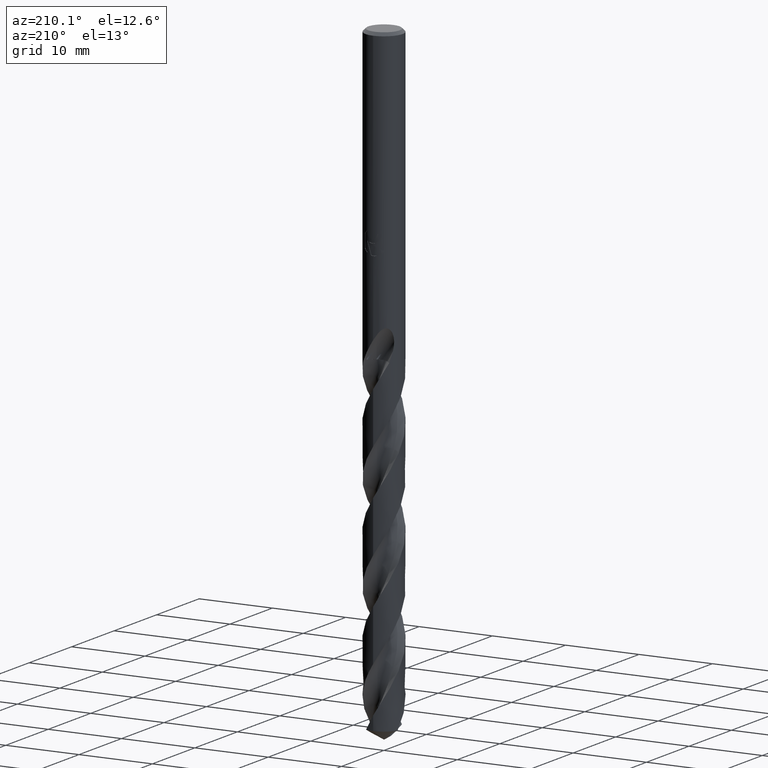
[diagram: clean part render]
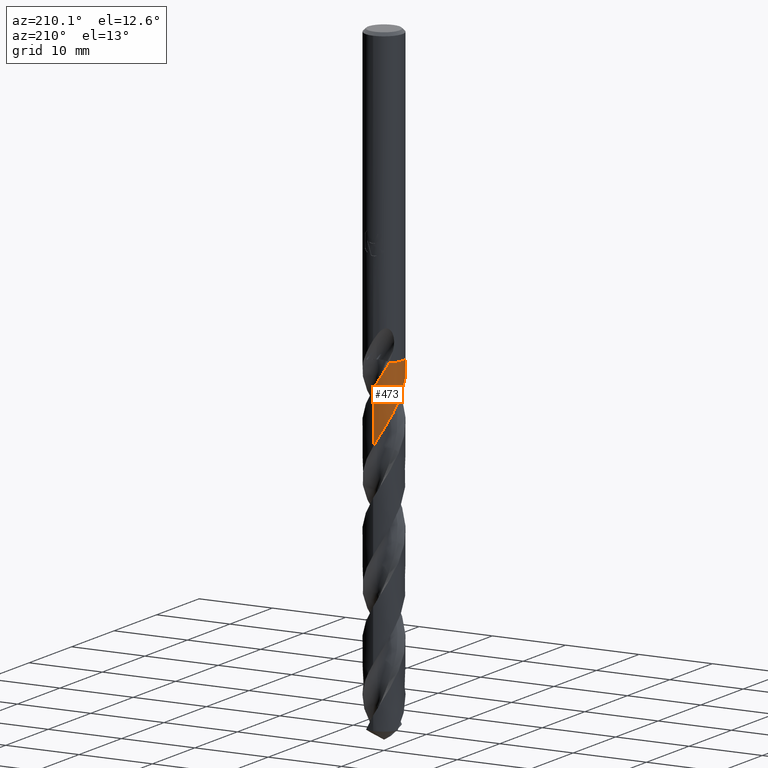
[diagram: same view with one face highlighted and labeled with its STEP entity id]
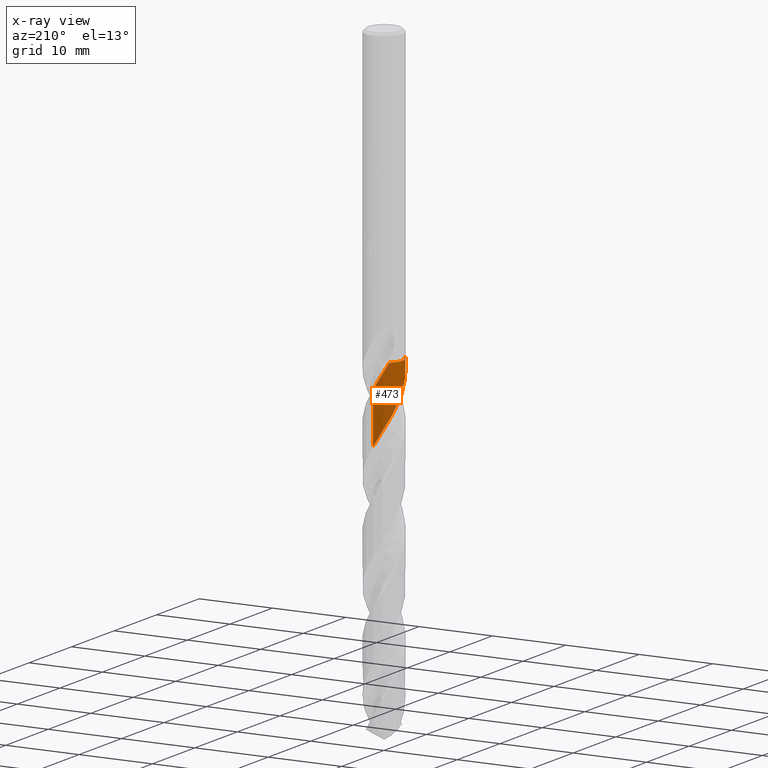
[diagram: x-ray of the same camera — body ghosted, the highlighted face saturated]
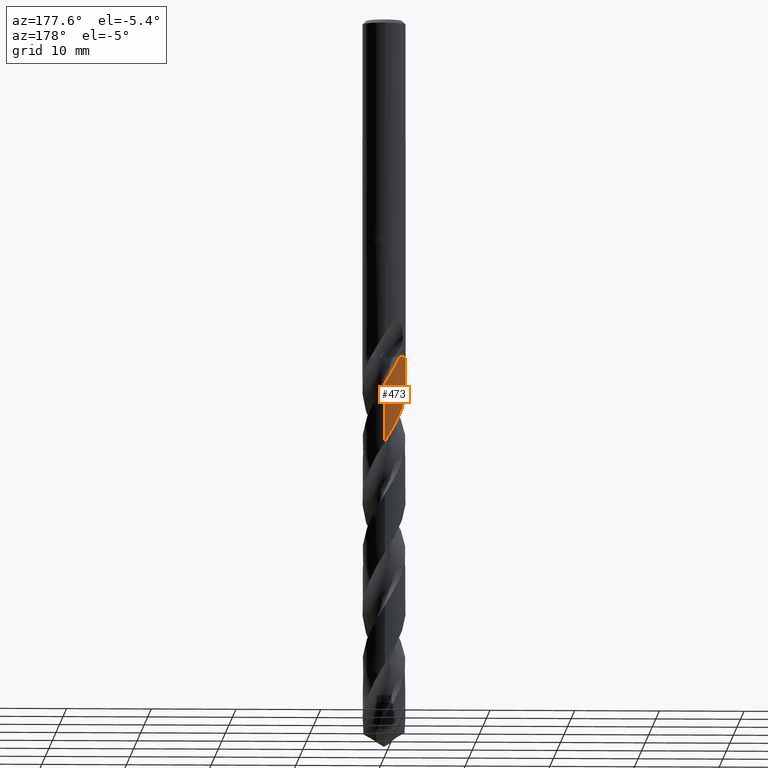
[diagram: same view with one face highlighted and labeled with its STEP entity id]
A machine part, auxiliary view. The second image highlights one B-rep face of the part: STEP entity #473.
The next image is the same camera in x-ray: the body ghosted, the highlighted face saturated — about 0% of this face is hidden behind the body in this view.
A second angle (auxiliary view) of the same face is appended — the face is thin or edge-on in the first view.
In plain terms, the highlighted conical surface has half-angle 0 deg.
Its self-contained STEP definition (entity closure, byte-faithful):
#273=VERTEX_POINT('',#772);
#289=EDGE_CURVE('',#597,#521,#789,.T.);
#291=EDGE_CURVE('',#571,#449,#791,.T.);
#417=EDGE_CURVE('',#439,#571,#932,.T.);
#439=VERTEX_POINT('',#955);
#449=VERTEX_POINT('',#965);
#473=ADVANCED_FACE('',(#990),#991,.T.);
#521=VERTEX_POINT('',#1043);
#571=VERTEX_POINT('',#1095);
#597=VERTEX_POINT('',#1123);
#641=EDGE_CURVE('',#521,#273,#1172,.T.);
#673=EDGE_CURVE('',#449,#597,#1207,.T.);
#691=EDGE_CURVE('',#273,#439,#1226,.T.);
#772=CARTESIAN_POINT('',(8.440574947388E-013,2.54992279290284,-50.058296588993));
#789=B_SPLINE_CURVE_WITH_KNOTS('',3,(#1484,#1485,#1486,#1487,#1488,#1489,#1490,#1491,#1492,#1493,#1494,#1495,#1496,#1497,#1498,#1499,#1500,#1501,#1502,#1503,#1504,#1505,#1506,#1507,#1508,#1509,#1510,#1511,#1512,#1513,#1514,#1515,#1516,#1517,#1518,#1519,#1520,#1521,#1522,#1523,#1524,#1525,#1526,#1527,#1528,#1529,#1530,#1531,#1532,#1533,#1534,#1535,#1536,#1537,#1538,#1539,#1540,#1541,#1542,#1543,#1544,#1545,#1546,#1547,#1548,#1549,#1550,#1551,#1552,#1553,#1554,#1555,#1556,#1557,#1558,#1559,#1560,#1561,#1562,#1563,#1564,#1565,#1566,#1567,#1568,#1569,#1570,#1571,#1572,#1573,#1574,#1575,#1576,#1577,#1578,#1579,#1580,#1581,#1582,#1583,#1584,#1585,#1586,#1587,#1588,#1589,#1590,#1591,#1592,#1593,#1594,#1595,#1596,#1597,#1598,#1599,#1600,#1601,#1602,#1603,#1604,#1605,#1606,#1607,#1608,#1609,#1610,#1611,#1612,#1613,#1614,#1615,#1616,#1617,#1618,#1619,#1620,#1621,#1622,#1623,#1624,#1625,#1626,#1627,#1628,#1629,#1630,#1631,#1632,#1633,#1634,#1635,#1636,#1637,#1638,#1639,#1640,#1641,#1642,#1643,#1644,#1645,#1646,#1647,#1648,#1649,#1650,#1651,#1652,#1653),.UNSPECIFIED.,.F.,.F.,(4,2,2,2,2,2,2,2,2,2,2,2,2,2,2,2,2,2,2,2,2,2,2,2,2,2,2,2,2,2,2,2,2,2,2,2,2,2,2,2,2,2,2,2,2,2,2,2,2,2,2,2,2,2,2,2,2,2,2,2,2,2,2,2,2,2,2,2,2,2,2,2,2,2,2,2,2,2,2,2,2,2,2,2,4),(0.0,0.1289003867779,0.20967630502013,0.219927323090969,0.225768006477936,0.229305344294958,0.232364383055172,0.235037511193027,0.237393931175857,0.239486668046633,0.241357145269324,0.243038265261639,0.24455655098041,0.245933651104251,0.553742122734929,0.62620119059038,0.665839472495525,0.699098372249616,0.738495942715459,0.809883850500402,0.907787905792497,1.3025659709241,1.55537703078222,2.05097821827631,3.17018514934176,3.59520130477232,4.31916235546973,4.72959242782101,5.21941359158196,6.24876845473718,6.78867340482069,7.60494178970837,8.05060921443211,8.47452030020541,9.28223600969028,10.1687804271957,11.1496106452739,11.7241998773506,12.5660980655195,13.4523766035624,14.4277279662493,15.01130220461,15.8555301253719,16.7412279944075,17.7289046034798,18.2918258940535,19.1334201912062,20.0193564674023,20.9940905262768,21.5778628174823,22.4217270833739,23.3070814515528,24.2943119899361,24.857131033221,25.6985240480323,26.5840982412755,27.5589001514242,28.1416367680582,28.9847623658284,29.8698379283179,30.8555792243082,31.4200109149371,32.2613408721694,33.1465291053263,34.1218386842541,34.7027664713882,35.5450043512273,36.4298268261532,37.4136445093189,37.9804260079949,38.821792358744,39.706577274446,40.6826250197941,41.2613410300859,42.1028665177999,42.9874086452468,43.9687420813322,44.5384018301179,45.3816214074138,46.7217475423208,47.2280803274049,48.105228384568,48.7713048896164,49.7752339791634,50.7815817450342),.UNSPECIFIED.);
#791=CIRCLE('',#1656,2.5499);
#932=B_SPLINE_CURVE_WITH_KNOTS('',3,(#2829,#2830,#2831,#2832),.UNSPECIFIED.,.F.,.F.,(4,4),(0.0,0.00587168454051059),.UNSPECIFIED.);
#955=CARTESIAN_POINT('',(-1.62486902012397,-1.96514394756601,-39.905));
#965=CARTESIAN_POINT('',(-1.77369596340268,1.83193685464566,-39.9));
#990=FACE_OUTER_BOUND('',#3115,.T.);
#991=CONICAL_SURFACE('',#3116,2.54995,2.24377213673275E-006);
#1043=CARTESIAN_POINT('',(1.39822000031324E-015,2.54990724493972,-43.1289106375547));
#1095=CARTESIAN_POINT('',(-1.62249536983017,-1.9671041621835,-39.9));
#1123=CARTESIAN_POINT('',(-1.7723765108616,1.83321345482734,-39.905));
#1172=LINE('',#6527,#6528);
#1207=B_SPLINE_CURVE_WITH_KNOTS('',3,(#6739,#6740,#6741,#6742),.UNSPECIFIED.,.F.,.F.,(4,4),(0.0,0.00532641151031046),.UNSPECIFIED.);
#1226=B_SPLINE_CURVE_WITH_KNOTS('',3,(#6777,#6778,#6779,#6780,#6781,#6782,#6783,#6784,#6785,#6786,#6787,#6788,#6789,#6790,#6791,#6792,#6793,#6794,#6795,#6796,#6797,#6798,#6799,#6800,#6801,#6802,#6803,#6804,#6805,#6806,#6807,#6808,#6809,#6810,#6811,#6812,#6813,#6814,#6815,#6816,#6817,#6818,#6819,#6820,#6821,#6822,#6823,#6824,#6825,#6826,#6827,#6828,#6829,#6830,#6831,#6832,#6833,#6834,#6835,#6836,#6837,#6838,#6839,#6840,#6841,#6842,#6843,#6844,#6845,#6846,#6847,#6848,#6849,#6850,#6851,#6852,#6853,#6854,#6855,#6856,#6857,#6858,#6859,#6860,#6861,#6862,#6863,#6864,#6865,#6866,#6867,#6868,#6869,#6870,#6871,#6872,#6873,#6874,#6875,#6876,#6877,#6878,#6879,#6880,#6881,#6882,#6883,#6884,#6885,#6886,#6887,#6888,#6889,#6890,#6891,#6892,#6893,#6894,#6895,#6896,#6897,#6898,#6899,#6900,#6901,#6902,#6903,#6904,#6905,#6906,#6907,#6908,#6909,#6910,#6911,#6912,#6913,#6914,#6915,#6916,#6917,#6918,#6919,#6920,#6921,#6922,#6923,#6924,#6925,#6926),.UNSPECIFIED.,.F.,.F.,(4,2,2,2,2,2,2,2,2,2,2,2,2,2,2,2,2,2,2,2,2,2,2,2,2,2,2,2,2,2,2,2,2,2,2,2,2,2,2,2,2,2,2,2,2,2,2,2,2,2,2,2,2,2,2,2,2,2,2,2,2,2,2,2,2,2,2,2,2,2,2,2,2,2,4),(0.0,0.834292459674619,1.25638308856406,2.08308224081408,2.98959708004024,3.74320338239227,4.64751619733098,5.43584933572268,6.27133898338755,7.0977921046257,7.93268776696286,8.76105196943183,9.59546811876491,10.3919298411075,11.2939375450753,12.0864861368241,12.920054774473,13.7544085557695,14.5878440667997,15.423852776262,16.2572192296612,17.0948435660273,17.9281829873467,18.7674322026949,19.5684862607322,20.4108366088573,21.1434496794337,21.6023358431682,22.3259790896244,23.233963263639,24.0255701684041,24.9334900178191,25.7167947637723,26.555168919761,27.3843845178338,28.2221715142705,29.0533926777859,29.8907018988019,30.1001117450132,30.4480686187432,31.4950693810496,32.3351093808538,33.1708524925985,34.0126132627201,34.8199937045484,35.664630696209,36.4066643482127,36.8313197786603,37.580866187403,38.4917240301091,39.2850806785072,40.1263892031595,40.9583432891031,41.7990204682036,42.6330559312034,43.4733478428731,43.6834805727513,44.0329225035173,45.0742290810254,45.9173383893087,46.7325994941373,47.0669812352283,47.5824034337252,48.9648410810972,49.0247331709308,50.2689648441536,50.9618016085863,51.443236267278,51.6333844460968,51.8175714265442,51.9729003532347,52.1343106950976,52.3748243318081,53.0497994714986,54.2855747476971),.UNSPECIFIED.);
#1484=CARTESIAN_POINT('',(-1.7723765108616,1.83321345482734,-39.905));
#1485=CARTESIAN_POINT('',(-1.75710082479515,1.84798231917754,-39.942345409149));
#1486=CARTESIAN_POINT('',(-1.74158352368253,1.86261607823018,-39.9797468883238));
#1487=CARTESIAN_POINT('',(-1.7158752497639,1.88625150478545,-40.0405273371217));
#1488=CARTESIAN_POINT('',(-1.70587498567545,1.89530114061216,-40.0638915283779));
#1489=CARTESIAN_POINT('',(-1.69445917770006,1.90546667381055,-40.0902150373534));
#1490=CARTESIAN_POINT('',(-1.69317173279362,1.90661078194075,-40.0931788339474));
#1491=CARTESIAN_POINT('',(-1.69114771753948,1.90840578372846,-40.0978305102769));
#1492=CARTESIAN_POINT('',(-1.69041246552744,1.9090570852861,-40.099518694452));
#1493=CARTESIAN_POINT('',(-1.68923091380225,1.91010250982506,-40.1022290246503));
#1494=CARTESIAN_POINT('',(-1.68878501316722,1.91049675986862,-40.1032512741058));
#1495=CARTESIAN_POINT('',(-1.68795307698173,1.9112318102534,-40.105157425643));
#1496=CARTESIAN_POINT('',(-1.68756710102275,1.91157262808963,-40.1060413403445));
#1497=CARTESIAN_POINT('',(-1.68684352010808,1.91221116193762,-40.1076975654927));
#1498=CARTESIAN_POINT('',(-1.6865059568547,1.91250889033874,-40.1084698852644));
#1499=CARTESIAN_POINT('',(-1.68587057748043,1.91306899132478,-40.1099229482114));
#1500=CARTESIAN_POINT('',(-1.68557279143794,1.91333137282118,-40.1106036981712));
#1501=CARTESIAN_POINT('',(-1.68501034884184,1.91382671189709,-40.1118889645978));
#1502=CARTESIAN_POINT('',(-1.68474571441892,1.91405967608105,-40.1124934862278));
#1503=CARTESIAN_POINT('',(-1.68424439849702,1.9145008122422,-40.1136382801826));
#1504=CARTESIAN_POINT('',(-1.68400773370455,1.91470898911376,-40.1141785562549));
#1505=CARTESIAN_POINT('',(-1.68355824042971,1.91510422794383,-40.1152043766916));
#1506=CARTESIAN_POINT('',(-1.68334542434983,1.91529129395906,-40.115689924773));
#1507=CARTESIAN_POINT('',(-1.68294030650592,1.91564727413575,-40.1166139603361));
#1508=CARTESIAN_POINT('',(-1.68274801489179,1.91581619097031,-40.1170524494959));
#1509=CARTESIAN_POINT('',(-1.68238123176374,1.91613829045939,-40.1178886279139));
#1510=CARTESIAN_POINT('',(-1.68220674770773,1.91629147566081,-40.1182863196675));
#1511=CARTESIAN_POINT('',(-1.64302384460731,1.95068193754742,-40.2075733927642));
#1512=CARTESIAN_POINT('',(-1.60323516826136,1.98355879727974,-40.2936515567197));
#1513=CARTESIAN_POINT('',(-1.55086329342116,2.02409931981106,-40.4016380699304));
#1514=CARTESIAN_POINT('',(-1.54080156605237,2.03176962800328,-40.4221640167497));
#1515=CARTESIAN_POINT('',(-1.52508711383509,2.04356402256881,-40.4539142188429));
#1516=CARTESIAN_POINT('',(-1.51950629570067,2.04771717809433,-40.4651311284185));
#1517=CARTESIAN_POINT('',(-1.50919528875433,2.05532490656425,-40.4857549433336));
#1518=CARTESIAN_POINT('',(-1.50447477134656,2.05878284358181,-40.495158579961));
#1519=CARTESIAN_POINT('',(-1.49412533668545,2.06630943565951,-40.5156980250104));
#1520=CARTESIAN_POINT('',(-1.48849218610201,2.07037110656198,-40.5268279873123));
#1521=CARTESIAN_POINT('',(-1.47258962472668,2.08173869663499,-40.558122914887));
#1522=CARTESIAN_POINT('',(-1.46228099878207,2.08899286646543,-40.578263518733));
#1523=CARTESIAN_POINT('',(-1.43768805662723,2.10602723033896,-40.626044427508));
#1524=CARTESIAN_POINT('',(-1.42354621183988,2.11561542706424,-40.6533399560316));
#1525=CARTESIAN_POINT('',(-1.3492400755399,2.16486813661586,-40.7965060616259));
#1526=CARTESIAN_POINT('',(-1.2884542569553,2.2015562412567,-40.91211653757));
#1527=CARTESIAN_POINT('',(-1.18714624689611,2.2571492457721,-41.1014328704564));
#1528=CARTESIAN_POINT('',(-1.14708250755872,2.27776863983421,-41.1754794635138));
#1529=CARTESIAN_POINT('',(-1.02710383189853,2.33556026650673,-41.3945428524944));
#1530=CARTESIAN_POINT('',(-0.94569054475681,2.36969664347883,-41.5396827580465));
#1531=CARTESIAN_POINT('',(-0.675173274216041,2.46695205194718,-42.0123670030964));
#1532=CARTESIAN_POINT('',(-0.480342691651086,2.51218965136044,-42.3373527534319));
#1533=CARTESIAN_POINT('',(-0.206745417929358,2.54264036946477,-42.7889613390525));
#1534=CARTESIAN_POINT('',(-0.131164228976441,2.54765460948168,-42.9132837801014));
#1535=CARTESIAN_POINT('',(0.0733090602386739,2.55210911823653,-43.2494413475797));
#1536=CARTESIAN_POINT('',(0.202234591228254,2.5451461864512,-43.46109828875));
#1537=CARTESIAN_POINT('',(0.402643478547547,2.51897995237044,-43.7928957204331));
#1538=CARTESIAN_POINT('',(0.474740292886891,2.50639449137294,-43.9128504486684));
#1539=CARTESIAN_POINT('',(0.631536457156175,2.47200905641116,-44.1760843485426));
#1540=CARTESIAN_POINT('',(0.715799651307436,2.44893671106806,-44.3191065398616));
#1541=CARTESIAN_POINT('',(0.972906273755773,2.3641381356545,-44.7634624135521));
#1542=CARTESIAN_POINT('',(1.14045068137314,2.2880339936105,-45.063892785551));
#1543=CARTESIAN_POINT('',(1.38123781303262,2.14557722436354,-45.5228560738743));
#1544=CARTESIAN_POINT('',(1.46120798956248,2.09193235044241,-45.6805285448341));
#1545=CARTESIAN_POINT('',(1.65394335694838,1.94619721319762,-46.0772965719924));
#1546=CARTESIAN_POINT('',(1.76226079247743,1.84869416400338,-46.3158988842429));
#1547=CARTESIAN_POINT('',(1.91597109789513,1.68446817317952,-46.6850648892814));
#1548=CARTESIAN_POINT('',(1.96752770696959,1.62395202498394,-46.8153312664105));
#1549=CARTESIAN_POINT('',(2.06246572789104,1.501340017724,-47.0696725883025));
#1550=CARTESIAN_POINT('',(2.10604707063752,1.43956451089131,-47.1935531134625));
#1551=CARTESIAN_POINT('',(2.22448294519126,1.25477955035464,-47.5539187485035));
#1552=CARTESIAN_POINT('',(2.29177221777368,1.12720719283332,-47.7900227746837));
#1553=CARTESIAN_POINT('',(2.40959054750615,0.849081796965022,-48.2857067380065));
#1554=CARTESIAN_POINT('',(2.45756027505976,0.698172389539032,-48.5441561491583));
#1555=CARTESIAN_POINT('',(2.52853086251414,0.373063189177631,-49.0906065147765));
#1556=CARTESIAN_POINT('',(2.54816720129012,0.198847127015647,-49.3770414159872));
#1557=CARTESIAN_POINT('',(2.55077174109361,-0.078535799314473,-49.8320941570523));
#1558=CARTESIAN_POINT('',(2.54555647842667,-0.18093435779369,-49.9998940003532));
#1559=CARTESIAN_POINT('',(2.51756356878523,-0.431860389635144,-50.4144177025546));
#1560=CARTESIAN_POINT('',(2.48778831492017,-0.579275010305784,-50.660550234012));
#1561=CARTESIAN_POINT('',(2.40038588627044,-0.874781296778172,-51.1662521032976));
#1562=CARTESIAN_POINT('',(2.34158404625479,-1.02179235304319,-51.4246662843443));
#1563=CARTESIAN_POINT('',(2.19032850306696,-1.31712207523675,-51.9695383906996));
#1564=CARTESIAN_POINT('',(2.09543275825326,-1.46340733582214,-52.2544403218185));
#1565=CARTESIAN_POINT('',(1.92106869747456,-1.6800200335991,-52.7106091793749));
#1566=CARTESIAN_POINT('',(1.85091516990051,-1.75700755570741,-52.8810589882676));
#1567=CARTESIAN_POINT('',(1.66828891668464,-1.93432360085718,-53.2989772364679));
#1568=CARTESIAN_POINT('',(1.55120926744088,-2.02942520113356,-53.5458361273543));
#1569=CARTESIAN_POINT('',(1.2954661707412,-2.20201543647695,-54.052148626433));
#1570=CARTESIAN_POINT('',(1.15663809863177,-2.27799769167237,-54.3104490812636));
#1571=CARTESIAN_POINT('',(0.850083174052981,-2.4105023258781,-54.8588661418706));
#1572=CARTESIAN_POINT('',(0.681590749856017,-2.46346294362942,-55.1473952135363));
#1573=CARTESIAN_POINT('',(0.410511538709561,-2.5186775340303,-55.6012107412484));
#1574=CARTESIAN_POINT('',(0.311035829316999,-2.53288449741426,-55.765676897921));
#1575=CARTESIAN_POINT('',(0.0614486043661623,-2.55360940757068,-56.1768563385945));
#1576=CARTESIAN_POINT('',(-0.0889452826599631,-2.55280361350817,-56.422995120745));
#1577=CARTESIAN_POINT('',(-0.395761769908905,-2.52399158980791,-56.9287032900503));
#1578=CARTESIAN_POINT('',(-0.551350340367504,-2.4946251236538,-57.187117168261));
#1579=CARTESIAN_POINT('',(-0.870255166881078,-2.40313479672044,-57.7319187158615));
#1580=CARTESIAN_POINT('',(-1.03204936247832,-2.33823114927872,-58.0167508795598));
#1581=CARTESIAN_POINT('',(-1.27824253899804,-2.20887981890743,-58.4729733307473));
#1582=CARTESIAN_POINT('',(-1.36737280565894,-2.15484010996276,-58.6435464936178));
#1583=CARTESIAN_POINT('',(-1.57661377668632,-2.00976338411463,-59.0615777861694));
#1584=CARTESIAN_POINT('',(-1.69248900481951,-1.91320724352992,-59.3084257725289));
#1585=CARTESIAN_POINT('',(-1.91112185121958,-1.69551878906015,-59.8147269542546));
#1586=CARTESIAN_POINT('',(-2.01243226408408,-1.57393381823246,-60.0730269981317));
#1587=CARTESIAN_POINT('',(-2.2015202919643,-1.29866603092405,-60.6214248667789));
#1588=CARTESIAN_POINT('',(-2.28595238527035,-1.14354689240931,-60.909935323105));
#1589=CARTESIAN_POINT('',(-2.39237601530823,-0.888179831467561,-61.3637657995736));
#1590=CARTESIAN_POINT('',(-2.42549257379308,-0.793286269096276,-61.5282655727917));
#1591=CARTESIAN_POINT('',(-2.49393344995752,-0.552327508653179,-61.9395150945714));
#1592=CARTESIAN_POINT('',(-2.52212419190187,-0.404573765366292,-62.1856899762885));
#1593=CARTESIAN_POINT('',(-2.5529658981003,-0.0979343517526164,-62.691428600299));
#1594=CARTESIAN_POINT('',(-2.55412593919532,0.0603943824266197,-62.9498369021303));
#1595=CARTESIAN_POINT('',(-2.52578529364102,0.39102862107752,-63.4947628037445));
#1596=CARTESIAN_POINT('',(-2.49324686921055,0.562374220130713,-63.7797238119037));
#1597=CARTESIAN_POINT('',(-2.41374546178859,0.828808093381166,-64.2358389598922));
#1598=CARTESIAN_POINT('',(-2.37793946412833,0.926544214781184,-64.4061759163839));
#1599=CARTESIAN_POINT('',(-2.27599922150101,1.15962556219637,-64.8238489520218));
#1600=CARTESIAN_POINT('',(-2.20362840303354,1.29187723830612,-65.0705768297394));
#1601=CARTESIAN_POINT('',(-2.03221742959786,1.54833223824733,-65.5767759008469));
#1602=CARTESIAN_POINT('',(-1.93244113483189,1.67119487663457,-65.83509388805));
#1603=CARTESIAN_POINT('',(-1.69892640616408,1.9096782027083,-66.3831856525232));
#1604=CARTESIAN_POINT('',(-1.56316345996098,2.02232397967677,-66.6713749375725));
#1605=CARTESIAN_POINT('',(-1.33303577862146,2.17611437715285,-67.1254173600655));
#1606=CARTESIAN_POINT('',(-1.2460272368374,2.22707547429479,-67.2904507487016));
#1607=CARTESIAN_POINT('',(-1.02243526130867,2.34082806970025,-67.7023132941945));
#1608=CARTESIAN_POINT('',(-0.882835201870884,2.39697155176244,-67.9485645025625));
#1609=CARTESIAN_POINT('',(-0.587839053545952,2.4863095160608,-68.454366945056));
#1610=CARTESIAN_POINT('',(-0.43270544811455,2.5179429126996,-68.7127628433285));
#1611=CARTESIAN_POINT('',(-0.102653134186653,2.55383598028536,-69.2579350304206));
#1612=CARTESIAN_POINT('',(0.0719114937841062,2.55489623834504,-69.5431525311561));
#1613=CARTESIAN_POINT('',(0.348542072464487,2.52816450478468,-69.9990624148352));
#1614=CARTESIAN_POINT('',(0.451065176260187,2.51189726219169,-70.1689375140744));
#1615=CARTESIAN_POINT('',(0.699053078756278,2.45688109781751,-70.5859816632532));
#1616=CARTESIAN_POINT('',(0.842682023890481,2.41139956397082,-70.8325458884157));
#1617=CARTESIAN_POINT('',(1.12730615333155,2.29270416147676,-71.3386066081493));
#1618=CARTESIAN_POINT('',(1.26712058755197,2.218489959766,-71.5969498107271));
#1619=CARTESIAN_POINT('',(1.54594719414897,2.03549467064486,-72.1446152994946));
#1620=CARTESIAN_POINT('',(1.68246491249005,1.92420250424309,-72.4323570867024));
#1621=CARTESIAN_POINT('',(1.87794393768554,1.7279882478801,-72.8867003879309));
#1622=CARTESIAN_POINT('',(1.94503768444925,1.65210049133316,-73.0524827753807));
#1623=CARTESIAN_POINT('',(2.10005746686224,1.45419877287774,-73.4652039642371));
#1624=CARTESIAN_POINT('',(2.18207415232358,1.32797161308297,-73.7115604721474));
#1625=CARTESIAN_POINT('',(2.32657479506827,1.05565252556611,-74.2174506920204));
#1626=CARTESIAN_POINT('',(2.38748797373662,0.909524277470647,-74.4758291733562));
#1627=CARTESIAN_POINT('',(2.48632958705661,0.59238215512472,-75.0213102694615));
#1628=CARTESIAN_POINT('',(2.52100908861841,0.421087908664485,-75.3068513065163));
#1629=CARTESIAN_POINT('',(2.54797384636629,0.144634623951022,-75.7625050688192));
#1630=CARTESIAN_POINT('',(2.55174028202438,0.0412528274618593,-75.9318004002087));
#1631=CARTESIAN_POINT('',(2.54557029114935,-0.212266980489316,-76.3481483205215));
#1632=CARTESIAN_POINT('',(2.52864257154912,-0.361901816357823,-76.5945997969798));
#1633=CARTESIAN_POINT('',(2.46707557044622,-0.66401752293947,-77.1005653011406));
#1634=CARTESIAN_POINT('',(2.42121293041097,-0.815530430406515,-77.3589259478865));
#1635=CARTESIAN_POINT('',(2.29555661504459,-1.12407541885227,-77.9059925326006));
#1636=CARTESIAN_POINT('',(2.21289067577643,-1.27917648076733,-78.1931233745036));
#1637=CARTESIAN_POINT('',(2.05805584439535,-1.50903987019931,-78.6477581365988));
#1638=CARTESIAN_POINT('',(1.99620255331197,-1.58995637923916,-78.8144438309289));
#1639=CARTESIAN_POINT('',(1.83125178725549,-1.78090863017221,-79.2287117479269));
#1640=CARTESIAN_POINT('',(1.72288201531559,-1.88595254309154,-79.4757039457289));
#1641=CARTESIAN_POINT('',(1.41986379078397,-2.13161099652913,-80.1158337506112));
#1642=CARTESIAN_POINT('',(1.21358653352633,-2.25542598411417,-80.5067077794185));
#1643=CARTESIAN_POINT('',(0.90985631428378,-2.38386235540575,-81.0481432011148));
#1644=CARTESIAN_POINT('',(0.824726762373744,-2.41463794158166,-81.1964838867651));
#1645=CARTESIAN_POINT('',(0.588066322069623,-2.48620554261302,-81.6020604167079));
#1646=CARTESIAN_POINT('',(0.434222603183263,-2.51762790294138,-81.8585488983761));
#1647=CARTESIAN_POINT('',(0.160322074455624,-2.54772775256942,-82.3111225796199));
#1648=CARTESIAN_POINT('',(0.0412976913343432,-2.55243731407633,-82.5062483324357));
#1649=CARTESIAN_POINT('',(-0.256957631043595,-2.54335078733456,-82.9958816795832));
#1650=CARTESIAN_POINT('',(-0.435149113569249,-2.51898486219866,-83.2892808441534));
#1651=CARTESIAN_POINT('',(-0.783807084526347,-2.43319703271543,-83.8787619975809));
#1652=CARTESIAN_POINT('',(-0.953378390369295,-2.37190252713942,-84.1728081523082));
#1653=CARTESIAN_POINT('',(-1.11514291587318,-2.29324143455892,-84.4678054214797));
#1656=AXIS2_PLACEMENT_3D('',#7902,#7903,#7904);
#2829=CARTESIAN_POINT('',(-1.62486902012397,-1.96514394756601,-39.905));
#2830=CARTESIAN_POINT('',(-1.62407852353545,-1.96579756069275,-39.9033330725351));
#2831=CARTESIAN_POINT('',(-1.62328730657003,-1.96645096639237,-39.9016664074045));
#2832=CARTESIAN_POINT('',(-1.62249536983017,-1.9671041621835,-39.9));
#3115=EDGE_LOOP('',(#8133,#8134,#8135,#8136,#8137,#8138));
#3116=AXIS2_PLACEMENT_3D('',#8139,#8140,#8141);
#6527=CARTESIAN_POINT('',(-3.12189704135808E-016,2.54995,-62.1839027107399));
#6528=VECTOR('',#8328,1.0);
#6739=CARTESIAN_POINT('',(-1.77369596340268,1.83193685464566,-39.9));
#6740=CARTESIAN_POINT('',(-1.77325645675946,1.83236239371002,-39.9016667471085));
#6741=CARTESIAN_POINT('',(-1.77281663934482,1.83278792722794,-39.9033334140627));
#6742=CARTESIAN_POINT('',(-1.7723765108616,1.83321345482734,-39.905));
#6777=CARTESIAN_POINT('',(2.37960457100722,-0.916505365855304,-84.4678054214798));
#6778=CARTESIAN_POINT('',(2.4314077289119,-0.782002724938314,-84.2299742114852));
#6779=CARTESIAN_POINT('',(2.47183770064505,-0.643036832091191,-83.9935396617518));
#6780=CARTESIAN_POINT('',(2.51469598142944,-0.429145140563815,-83.6361484513988));
#6781=CARTESIAN_POINT('',(2.52598170457256,-0.356740753823718,-83.516233217948));
#6782=CARTESIAN_POINT('',(2.55010066967089,-0.141515996397765,-83.1608521105374));
#6783=CARTESIAN_POINT('',(2.5540309316148,0.00205691930563587,-82.9247450150984));
#6784=CARTESIAN_POINT('',(2.53688119383066,0.302448901436252,-82.4315086156913));
#6785=CARTESIAN_POINT('',(2.51339174582382,0.458288771601277,-82.175074809917));
#6786=CARTESIAN_POINT('',(2.44445433281858,0.737683244226477,-81.7024493966522));
#6787=CARTESIAN_POINT('',(2.40345515809923,0.861966733542118,-81.4869869846659));
#6788=CARTESIAN_POINT('',(2.29253206168709,1.12756621422652,-81.0148747301565));
#6789=CARTESIAN_POINT('',(2.21879633777831,1.26649601945384,-80.7589518609733));
#6790=CARTESIAN_POINT('',(2.05784290590841,1.51209729538958,-80.2769004240994));
#6791=CARTESIAN_POINT('',(1.97381013609662,1.62026719921764,-80.0514575470918));
#6792=CARTESIAN_POINT('',(1.78345714345152,1.82832627079264,-79.5889528251164));
#6793=CARTESIAN_POINT('',(1.67658059237676,1.92679964806105,-79.3522617857931));
#6794=CARTESIAN_POINT('',(1.44851863633096,2.10352444380121,-78.8789081112087));
#6795=CARTESIAN_POINT('',(1.3279839473188,2.181624272133,-78.6425510225815));
#6796=CARTESIAN_POINT('',(1.07353861684915,2.31753276610081,-78.1693602881999));
#6797=CARTESIAN_POINT('',(0.940088737859944,2.37479924782631,-77.9328451822087));
#6798=CARTESIAN_POINT('',(0.665977945396942,2.46568018408529,-77.4591727610634));
#6799=CARTESIAN_POINT('',(0.526012122923874,2.49928049112403,-77.2222919138715));
#6800=CARTESIAN_POINT('',(0.240676905980928,2.54272769524863,-76.748753303468));
#6801=CARTESIAN_POINT('',(0.0958858212747944,2.55229341778424,-76.5124072549536));
#6802=CARTESIAN_POINT('',(-0.187209009152882,2.54685638675371,-76.0480652119043));
#6803=CARTESIAN_POINT('',(-0.324849866213372,2.53297408142609,-75.820362105869));
#6804=CARTESIAN_POINT('',(-0.614598497752286,2.47974624047608,-75.3367827757341));
#6805=CARTESIAN_POINT('',(-0.765571821436334,2.43737406957107,-75.0815921705969));
#6806=CARTESIAN_POINT('',(-1.04018746322578,2.33223320155632,-74.5993114253773));
#6807=CARTESIAN_POINT('',(-1.16429013504284,2.27281692542249,-74.372816938777));
#6808=CARTESIAN_POINT('',(-1.40794820830046,2.13095053255951,-73.9100211243571));
#6809=CARTESIAN_POINT('',(-1.52648439418542,2.04771700799985,-73.67407573736));
#6810=CARTESIAN_POINT('',(-1.74836543589251,1.8618678410227,-73.1996086842172));
#6811=CARTESIAN_POINT('',(-1.85110350794023,1.75974051311801,-72.9612914763721));
#6812=CARTESIAN_POINT('',(-2.03804307681624,1.53935047155004,-72.486856291073));
#6813=CARTESIAN_POINT('',(-2.12197873906884,1.42143097113866,-72.2510594624445));
#6814=CARTESIAN_POINT('',(-2.26926321518798,1.17210411484094,-71.7764213852044));
#6815=CARTESIAN_POINT('',(-2.33214307526094,1.041352629506,-71.5377798190521));
#6816=CARTESIAN_POINT('',(-2.43484800722986,0.771157653054908,-71.0631572479288));
#6817=CARTESIAN_POINT('',(-2.47460657533827,0.632092073166657,-70.8275126346536));
#6818=CARTESIAN_POINT('',(-2.53030841577706,0.347801420095566,-70.3527388611281));
#6819=CARTESIAN_POINT('',(-2.54597316501635,0.203361899302636,-70.1138108226032));
#6820=CARTESIAN_POINT('',(-2.55260267953974,-0.0856460517832033,-69.6390466669487));
#6821=CARTESIAN_POINT('',(-2.54368286335906,-0.229894010728993,-69.4035652454795));
#6822=CARTESIAN_POINT('',(-2.50132389962024,-0.516569258035382,-68.9286884298168));
#6823=CARTESIAN_POINT('',(-2.46783610864285,-0.658137573488848,-68.6895020340277));
#6824=CARTESIAN_POINT('',(-2.37934158054372,-0.927478760195419,-68.2238044504524));
#6825=CARTESIAN_POINT('',(-2.32544914559909,-1.05538452308151,-67.9975300323738));
#6826=CARTESIAN_POINT('',(-2.19394835622686,-1.30773477004709,-67.5313499553963));
#6827=CARTESIAN_POINT('',(-2.11565429729018,-1.43088936108948,-67.2916029765751));
#6828=CARTESIAN_POINT('',(-1.95080730157234,-1.64700802517128,-66.8449022061371));
#6829=CARTESIAN_POINT('',(-1.86666803990248,-1.74181274541502,-66.6380065909287));
#6830=CARTESIAN_POINT('',(-1.71872312447747,-1.88536095667709,-66.3004268979626));
#6831=CARTESIAN_POINT('',(-1.65925950233647,-1.93789121684154,-66.1705786844864));
#6832=CARTESIAN_POINT('',(-1.50016613724759,-2.06576621943969,-65.8352522248706));
#6833=CARTESIAN_POINT('',(-1.39710646873072,-2.13683029124416,-65.6291843934411));
#6834=CARTESIAN_POINT('',(-1.15361508940355,-2.27949886739694,-65.1663243324933));
#6835=CARTESIAN_POINT('',(-1.01111573018837,-2.34617657107202,-64.9103270727632));
#6836=CARTESIAN_POINT('',(-0.73474367189519,-2.44563657468697,-64.4281205828297));
#6837=CARTESIAN_POINT('',(-0.602502168111254,-2.48153513753755,-64.202592810249));
#6838=CARTESIAN_POINT('',(-0.3134549557508,-2.53548478247389,-63.7203454388331));
#6839=CARTESIAN_POINT('',(-0.156766956350533,-2.5499634791584,-63.4642994961606));
#6840=CARTESIAN_POINT('',(0.135571339665729,-2.54994263461037,-62.9843255759658));
#6841=CARTESIAN_POINT('',(0.270764441513668,-2.53915632123962,-62.7610949632416));
#6842=CARTESIAN_POINT('',(0.547859836716915,-2.49462367145585,-62.3007924697768));
#6843=CARTESIAN_POINT('',(0.688854970450945,-2.45942259613536,-62.0641049922574));
#6844=CARTESIAN_POINT('',(0.96179499135722,-2.36596038433138,-61.5907796533445));
#6845=CARTESIAN_POINT('',(1.09325646081003,-2.30816222888466,-61.3544490619053));
#6846=CARTESIAN_POINT('',(1.34659164755384,-2.17023867134347,-60.8812839072929));
#6847=CARTESIAN_POINT('',(1.46775779140328,-2.09019782298816,-60.644766935787));
#6848=CARTESIAN_POINT('',(1.69428766099156,-1.91109803807547,-60.1710946738443));
#6849=CARTESIAN_POINT('',(1.79925863582345,-1.81261180885162,-59.9342164342497));
#6850=CARTESIAN_POINT('',(1.99232550475777,-1.59807096939991,-59.4606770433797));
#6851=CARTESIAN_POINT('',(2.07986758250522,-1.48234567868995,-59.224328418925));
#6852=CARTESIAN_POINT('',(2.17644087201081,-1.32914467754465,-58.9273336596772));
#6853=CARTESIAN_POINT('',(2.19509073926034,-1.29811101760828,-58.8679197758888));
#6854=CARTESIAN_POINT('',(2.24291835549147,-1.21455144486074,-58.7096791336172));
#6855=CARTESIAN_POINT('',(2.27087560736506,-1.16143262866974,-58.6106878359367));
#6856=CARTESIAN_POINT('',(2.37530386846185,-0.94483042903045,-58.2149634190187));
#6857=CARTESIAN_POINT('',(2.43629903605532,-0.774204909353009,-57.9204587470481));
#6858=CARTESIAN_POINT('',(2.51282572949382,-0.45714245912827,-57.3858956339195));
#6859=CARTESIAN_POINT('',(2.53473397153501,-0.313537477286476,-57.1469887054149));
#6860=CARTESIAN_POINT('',(2.5538855169338,-0.0251228941669817,-56.6722731676568));
#6861=CARTESIAN_POINT('',(2.55122991003873,0.11935954092573,-56.4368154087797));
#6862=CARTESIAN_POINT('',(2.52134692086507,0.40758586644661,-55.961962684573));
#6863=CARTESIAN_POINT('',(2.49403107438295,0.550474533886716,-55.7227776661865));
#6864=CARTESIAN_POINT('',(2.41711532114256,0.824061668701054,-55.2559646374076));
#6865=CARTESIAN_POINT('',(2.36853052642515,0.954805481218563,-55.0285919636133));
#6866=CARTESIAN_POINT('',(2.24762148909326,1.21310220636369,-54.5613578793256));
#6867=CARTESIAN_POINT('',(2.1746662269884,1.33944296820168,-54.3216595799615));
#6868=CARTESIAN_POINT('',(2.01847765624581,1.56339460663643,-53.8729648640703));
#6869=CARTESIAN_POINT('',(1.93758819340089,1.6626132671059,-53.664042893193));
#6870=CARTESIAN_POINT('',(1.79904187904397,1.8085789433475,-53.3344601564403));
#6871=CARTESIAN_POINT('',(1.74640019661557,1.85945473828744,-53.2146242230329));
#6872=CARTESIAN_POINT('',(1.59516703065986,1.99354641445902,-52.8826602875931));
#6873=CARTESIAN_POINT('',(1.49222638369308,2.07173790658061,-52.669865691332));
#6874=CARTESIAN_POINT('',(1.25175869778981,2.22708207190118,-52.2003184559936));
#6875=CARTESIAN_POINT('',(1.11229837850979,2.29990066026603,-51.9443165711522));
#6876=CARTESIAN_POINT('',(0.840641736386714,2.41124940687934,-51.4623125871819));
#6877=CARTESIAN_POINT('',(0.710217669314206,2.45284164357966,-51.2369923640576));
#6878=CARTESIAN_POINT('',(0.435605072506893,2.51662784577249,-50.7746016108104));
#6879=CARTESIAN_POINT('',(0.291759034101154,2.53732663052322,-50.5379032563127));
#6880=CARTESIAN_POINT('',(0.00376135990861756,2.55395085328718,-50.064599898326));
#6881=CARTESIAN_POINT('',(-0.139771552460462,2.550127180457,-49.8283016622449));
#6882=CARTESIAN_POINT('',(-0.426424319910205,2.5181889245801,-49.3551700664555));
#6883=CARTESIAN_POINT('',(-0.568854967727851,2.48988190777836,-49.1186534019022));
#6884=CARTESIAN_POINT('',(-0.846264719103332,2.40969039330723,-48.6449944639924));
#6885=CARTESIAN_POINT('',(-0.980664784783842,2.35818888526115,-48.4081338419628));
#6886=CARTESIAN_POINT('',(-1.24050347692792,2.23253560519868,-47.9345807242114));
#6887=CARTESIAN_POINT('',(-1.36530267936407,2.15847577334844,-47.6982005331381));
#6888=CARTESIAN_POINT('',(-1.51262347977622,2.05313386403189,-47.4011740792771));
#6889=CARTESIAN_POINT('',(-1.54161828741597,2.03145185313662,-47.3417590029634));
#6890=CARTESIAN_POINT('',(-1.61751584060978,1.97213949227566,-47.1834349636025));
#6891=CARTESIAN_POINT('',(-1.66351081872185,1.93349629845119,-47.0843606500295));
#6892=CARTESIAN_POINT('',(-1.84091004671466,1.77344880555206,-46.6911694732106));
#6893=CARTESIAN_POINT('',(-1.96092091165915,1.6398275298705,-46.3992472918358));
#6894=CARTESIAN_POINT('',(-2.15118545960516,1.37679183017971,-45.8672538942771));
#6895=CARTESIAN_POINT('',(-2.22598194721478,1.25221937910342,-45.628316724905));
#6896=CARTESIAN_POINT('',(-2.35139622073676,0.996300918595079,-45.1601339494673));
#6897=CARTESIAN_POINT('',(-2.40262740230382,0.865521870261743,-44.9311213467362));
#6898=CARTESIAN_POINT('',(-2.45937023547338,0.675911074554252,-44.6068285618438));
#6899=CARTESIAN_POINT('',(-2.47398657454649,0.620269864383237,-44.5125548778087));
#6900=CARTESIAN_POINT('',(-2.50629824503398,0.477863354262999,-44.272674039658));
#6901=CARTESIAN_POINT('',(-2.52137873016751,0.39056973158914,-44.1267096573347));
#6902=CARTESIAN_POINT('',(-2.56010432352119,0.066490022191721,-43.5908725946136));
#6903=CARTESIAN_POINT('',(-2.55508754760549,-0.171820387509132,-43.2064742992563));
#6904=CARTESIAN_POINT('',(-2.51584682777103,-0.415503265889598,-42.7986872068017));
#6905=CARTESIAN_POINT('',(-2.51416060706138,-0.425586742126216,-42.7817801481299));
#6906=CARTESIAN_POINT('',(-2.47610202569416,-0.645059336016555,-42.4136587612899));
#6907=CARTESIAN_POINT('',(-2.41378673931903,-0.849374335631882,-42.0690530132158));
#6908=CARTESIAN_POINT('',(-2.27731537950553,-1.15327397623864,-41.5263528741518));
#6909=CARTESIAN_POINT('',(-2.22140704955216,-1.25730882871857,-41.334980103992));
#6910=CARTESIAN_POINT('',(-2.11683728933678,-1.42390510094111,-41.0045021029217));
#6911=CARTESIAN_POINT('',(-2.07173068149842,-1.48858279984692,-40.8687923250907));
#6912=CARTESIAN_POINT('',(-2.00635426836534,-1.57399775762745,-40.6767481977607));
#6913=CARTESIAN_POINT('',(-1.99279220272636,-1.59087477008055,-40.6372368175452));
#6914=CARTESIAN_POINT('',(-1.98015234483229,-1.60657807189408,-40.6008550953703));
#6915=CARTESIAN_POINT('',(-1.97379605499699,-1.61438265698982,-40.5830421366968));
#6916=CARTESIAN_POINT('',(-1.96181319595764,-1.62891395946738,-40.5503566964136));
#6917=CARTESIAN_POINT('',(-1.95623066501258,-1.63561512090868,-40.5354671673554));
#6918=CARTESIAN_POINT('',(-1.94463418086802,-1.64938746778346,-40.5052284137852));
#6919=CARTESIAN_POINT('',(-1.93861409288987,-1.65646025575091,-40.4898897521388));
#6920=CARTESIAN_POINT('',(-1.92333801690283,-1.67420533952588,-40.4518628386419));
#6921=CARTESIAN_POINT('',(-1.91394801733207,-1.68493610176903,-40.4292714696554));
#6922=CARTESIAN_POINT('',(-1.87721107085146,-1.7261901522882,-40.3438603172954));
#6923=CARTESIAN_POINT('',(-1.84817346526805,-1.75733607822768,-40.2823341551455));
#6924=CARTESIAN_POINT('',(-1.75977513940464,-1.84711227012021,-40.1115002616626));
#6925=CARTESIAN_POINT('',(-1.69605684103023,-1.90628296477936,-40.0065014335889));
#6926=CARTESIAN_POINT('',(-1.62486902012397,-1.96514394756601,-39.905));
#7902=CARTESIAN_POINT('',(0.0,0.0,-39.9));
#7903=DIRECTION('',(0.0,0.0,-1.0));
#7904=DIRECTION('',(0.0,1.0,0.0));
#8133=ORIENTED_EDGE('',*,*,#641,.T.);
#8134=ORIENTED_EDGE('',*,*,#691,.T.);
#8135=ORIENTED_EDGE('',*,*,#417,.T.);
#8136=ORIENTED_EDGE('',*,*,#291,.T.);
#8137=ORIENTED_EDGE('',*,*,#673,.T.);
#8138=ORIENTED_EDGE('',*,*,#289,.T.);
#8139=CARTESIAN_POINT('',(0.0,0.0,-62.1839027107399));
#8140=DIRECTION('',(0.0,-0.0,-1.0));
#8141=DIRECTION('',(0.0,1.0,0.0));
#8328=DIRECTION('',(-2.74773761517024E-022,2.24377213673087E-006,-0.999999999997483));